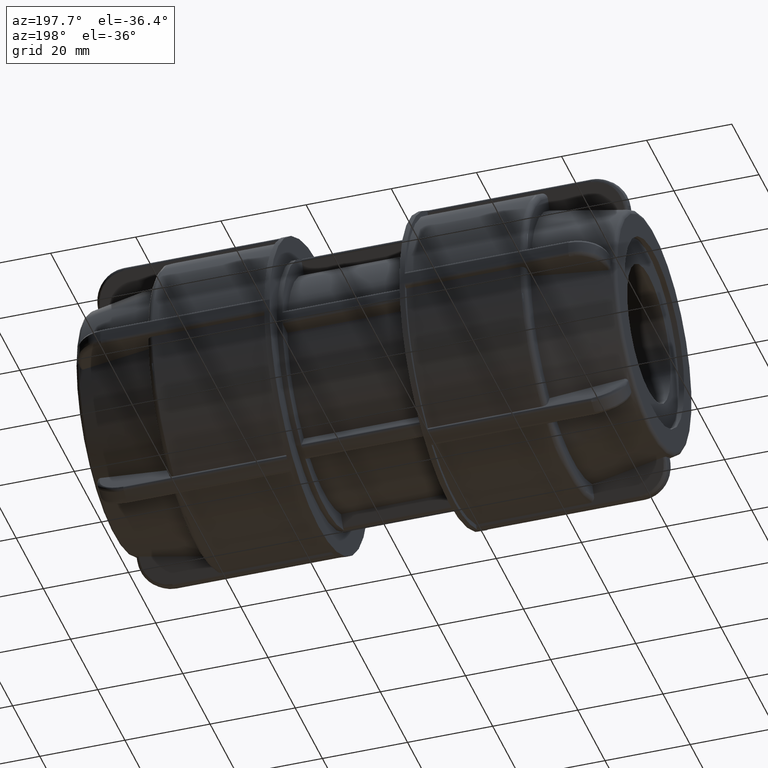
[diagram: clean part render]
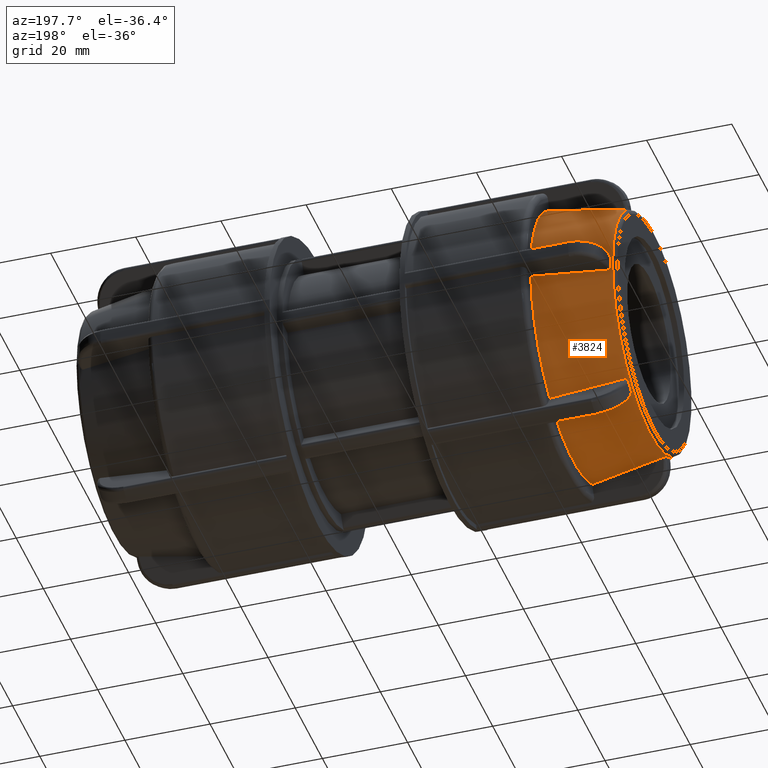
[diagram: same view with one face highlighted and labeled with its STEP entity id]
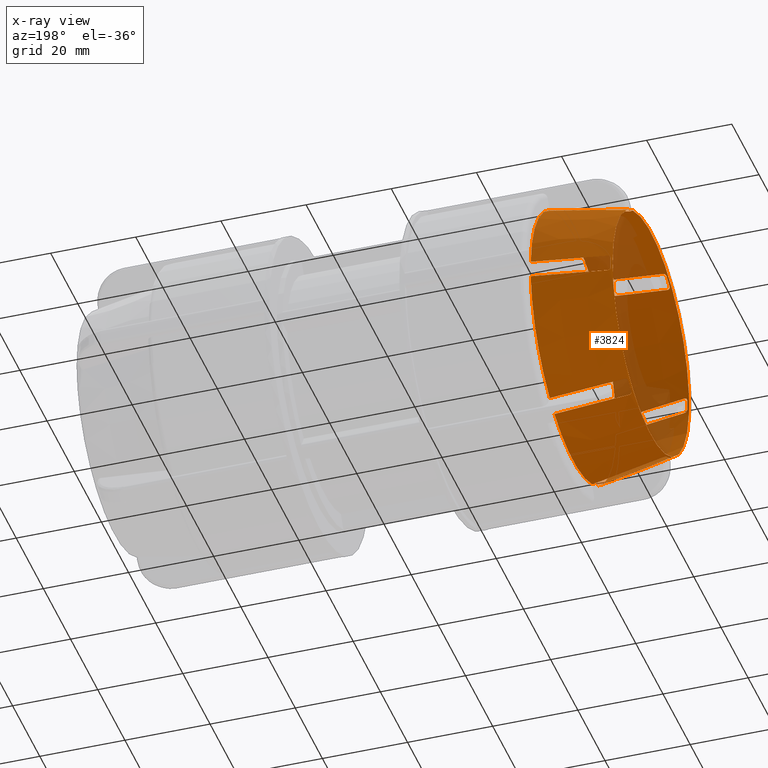
[diagram: x-ray of the same camera — body ghosted, the highlighted face saturated]
A machine part, auxiliary view. The second image highlights one B-rep face of the part: STEP entity #3824.
The next image is the same camera in x-ray: the body ghosted, the highlighted face saturated — about 14% of this face is hidden behind the body in this view.
In plain terms, the highlighted conical surface has half-angle 10 deg.
Its self-contained STEP definition (entity closure, byte-faithful):
#15=CONICAL_SURFACE('',#4187,29.6795144912481,9.99999999999999);
#43=(
BOUNDED_CURVE()
B_SPLINE_CURVE(2,(#5802,#5803,#5804),.UNSPECIFIED.,.F.,.F.)
B_SPLINE_CURVE_WITH_KNOTS((3,3),(0.077985239903861,1.80555209068343),
 .UNSPECIFIED.)
CURVE()
GEOMETRIC_REPRESENTATION_ITEM()
RATIONAL_B_SPLINE_CURVE((1.00011517546664,1.00133329912717,1.))
REPRESENTATION_ITEM('')
);
#44=(
BOUNDED_CURVE()
B_SPLINE_CURVE(2,(#6011,#6012,#6013),.UNSPECIFIED.,.F.,.F.)
B_SPLINE_CURVE_WITH_KNOTS((3,3),(0.0779852374107117,1.80555209068343),
 .UNSPECIFIED.)
CURVE()
GEOMETRIC_REPRESENTATION_ITEM()
RATIONAL_B_SPLINE_CURVE((1.00011517515057,1.0013332955109,1.))
REPRESENTATION_ITEM('')
);
#45=(
BOUNDED_CURVE()
B_SPLINE_CURVE(2,(#6172,#6173,#6174),.UNSPECIFIED.,.F.,.F.)
B_SPLINE_CURVE_WITH_KNOTS((3,3),(0.0779852374741689,1.80555209068343),
 .UNSPECIFIED.)
CURVE()
GEOMETRIC_REPRESENTATION_ITEM()
RATIONAL_B_SPLINE_CURVE((1.00011517516023,1.00133329562156,1.))
REPRESENTATION_ITEM('')
);
#46=(
BOUNDED_CURVE()
B_SPLINE_CURVE(2,(#6333,#6334,#6335),.UNSPECIFIED.,.F.,.F.)
B_SPLINE_CURVE_WITH_KNOTS((3,3),(0.0779852374197548,1.80555209068343),
 .UNSPECIFIED.)
CURVE()
GEOMETRIC_REPRESENTATION_ITEM()
RATIONAL_B_SPLINE_CURVE((1.00011517515211,1.00133329552855,1.))
REPRESENTATION_ITEM('')
);
#47=(
BOUNDED_CURVE()
B_SPLINE_CURVE(2,(#6494,#6495,#6496),.UNSPECIFIED.,.F.,.F.)
B_SPLINE_CURVE_WITH_KNOTS((3,3),(0.0779852400114953,1.80555209068343),
 .UNSPECIFIED.)
CURVE()
GEOMETRIC_REPRESENTATION_ITEM()
RATIONAL_B_SPLINE_CURVE((1.00011517547462,1.00133329921766,1.))
REPRESENTATION_ITEM('')
);
#48=(
BOUNDED_CURVE()
B_SPLINE_CURVE(2,(#6571,#6572,#6573),.UNSPECIFIED.,.F.,.F.)
B_SPLINE_CURVE_WITH_KNOTS((3,3),(0.,1.72756685067412),.UNSPECIFIED.)
CURVE()
GEOMETRIC_REPRESENTATION_ITEM()
RATIONAL_B_SPLINE_CURVE((1.,1.00133329924785,1.00011517547722))
REPRESENTATION_ITEM('')
);
#49=(
BOUNDED_CURVE()
B_SPLINE_CURVE(2,(#6592,#6593,#6594),.UNSPECIFIED.,.F.,.F.)
B_SPLINE_CURVE_WITH_KNOTS((3,3),(0.,1.72756685298491),.UNSPECIFIED.)
CURVE()
GEOMETRIC_REPRESENTATION_ITEM()
RATIONAL_B_SPLINE_CURVE((1.,1.00133329596623,1.00011517519033))
REPRESENTATION_ITEM('')
);
#50=(
BOUNDED_CURVE()
B_SPLINE_CURVE(2,(#6613,#6614,#6615),.UNSPECIFIED.,.F.,.F.)
B_SPLINE_CURVE_WITH_KNOTS((3,3),(0.,1.72756685338818),.UNSPECIFIED.)
CURVE()
GEOMETRIC_REPRESENTATION_ITEM()
RATIONAL_B_SPLINE_CURVE((1.,1.00133329537451,1.00011517513862))
REPRESENTATION_ITEM('')
);
#51=(
BOUNDED_CURVE()
B_SPLINE_CURVE(2,(#6634,#6635,#6636),.UNSPECIFIED.,.F.,.F.)
B_SPLINE_CURVE_WITH_KNOTS((3,3),(0.,1.7275668533138),.UNSPECIFIED.)
CURVE()
GEOMETRIC_REPRESENTATION_ITEM()
RATIONAL_B_SPLINE_CURVE((1.,1.00133329551342,1.00011517515073))
REPRESENTATION_ITEM('')
);
#52=(
BOUNDED_CURVE()
B_SPLINE_CURVE(2,(#6655,#6656,#6657),.UNSPECIFIED.,.F.,.F.)
B_SPLINE_CURVE_WITH_KNOTS((3,3),(0.,1.72756685338782),.UNSPECIFIED.)
CURVE()
GEOMETRIC_REPRESENTATION_ITEM()
RATIONAL_B_SPLINE_CURVE((1.,1.00133329536203,1.00011517513754))
REPRESENTATION_ITEM('')
);
#53=(
BOUNDED_CURVE()
B_SPLINE_CURVE(2,(#6832,#6833,#6834),.UNSPECIFIED.,.F.,.F.)
B_SPLINE_CURVE_WITH_KNOTS((3,3),(0.0779852374755114,1.80555209068343),
 .UNSPECIFIED.)
CURVE()
GEOMETRIC_REPRESENTATION_ITEM()
RATIONAL_B_SPLINE_CURVE((1.00011517515731,1.00133329558777,1.))
REPRESENTATION_ITEM('')
);
#54=(
BOUNDED_CURVE()
B_SPLINE_CURVE(2,(#6906,#6907,#6908),.UNSPECIFIED.,.F.,.F.)
B_SPLINE_CURVE_WITH_KNOTS((3,3),(0.,1.72756685320891),.UNSPECIFIED.)
CURVE()
GEOMETRIC_REPRESENTATION_ITEM()
RATIONAL_B_SPLINE_CURVE((1.,1.00133329559259,1.00011517515772))
REPRESENTATION_ITEM('')
);
#69=B_SPLINE_CURVE_WITH_KNOTS('',3,(#5770,#5771,#5772,#5773,#5774,#5775,
#5776,#5777,#5778,#5779,#5780,#5781),.UNSPECIFIED.,.F.,.F.,(4,2,2,2,2,4),
(0.111268456370665,0.138060680821861,0.165429263545103,0.193175798658956,
0.220922333772809,0.221842292439275),.UNSPECIFIED.);
#73=B_SPLINE_CURVE_WITH_KNOTS('',3,(#5862,#5863,#5864,#5865,#5866,#5867,
#5868,#5869,#5870,#5871,#5872,#5873),.UNSPECIFIED.,.F.,.F.,(4,2,2,2,2,4),
(0.221775675782931,0.222695634449382,0.250442169563234,0.278188704677087,
0.305557287400329,0.332349511851525),.UNSPECIFIED.);
#76=B_SPLINE_CURVE_WITH_KNOTS('',3,(#5979,#5980,#5981,#5982,#5983,#5984,
#5985,#5986,#5987,#5988,#5989,#5990),.UNSPECIFIED.,.F.,.F.,(4,2,2,2,2,4),
(0.111268456370665,0.138060680821861,0.165429263545103,0.193175798658956,
0.220922333772809,0.221842292439257),.UNSPECIFIED.);
#80=B_SPLINE_CURVE_WITH_KNOTS('',3,(#6068,#6069,#6070,#6071,#6072,#6073,
#6074,#6075,#6076,#6077,#6078,#6079),.UNSPECIFIED.,.F.,.F.,(4,2,2,2,2,4),
(0.221775675782934,0.222695634449381,0.250442169563234,0.278188704677086,
0.305557287400328,0.332349511851525),.UNSPECIFIED.);
#83=B_SPLINE_CURVE_WITH_KNOTS('',3,(#6140,#6141,#6142,#6143,#6144,#6145,
#6146,#6147,#6148,#6149,#6150,#6151),.UNSPECIFIED.,.F.,.F.,(4,2,2,2,2,4),
(0.111268456370665,0.138060680821861,0.165429263545103,0.193175798658956,
0.220922333772808,0.221842292439258),.UNSPECIFIED.);
#87=B_SPLINE_CURVE_WITH_KNOTS('',3,(#6229,#6230,#6231,#6232,#6233,#6234,
#6235,#6236,#6237,#6238,#6239,#6240),.UNSPECIFIED.,.F.,.F.,(4,2,2,2,2,4),
(0.221775675782932,0.222695634449381,0.250442169563234,0.278188704677086,
0.305557287400328,0.332349511851525),.UNSPECIFIED.);
#90=B_SPLINE_CURVE_WITH_KNOTS('',3,(#6301,#6302,#6303,#6304,#6305,#6306,
#6307,#6308,#6309,#6310,#6311,#6312),.UNSPECIFIED.,.F.,.F.,(4,2,2,2,2,4),
(0.111268456370664,0.138060680821861,0.165429263545102,0.193175798658956,
0.220922333772809,0.221842292439257),.UNSPECIFIED.);
#94=B_SPLINE_CURVE_WITH_KNOTS('',3,(#6390,#6391,#6392,#6393,#6394,#6395,
#6396,#6397,#6398,#6399,#6400,#6401),.UNSPECIFIED.,.F.,.F.,(4,2,2,2,2,4),
(0.221775675782933,0.222695634449381,0.250442169563234,0.278188704677087,
0.305557287400329,0.332349511851525),.UNSPECIFIED.);
#97=B_SPLINE_CURVE_WITH_KNOTS('',3,(#6462,#6463,#6464,#6465,#6466,#6467,
#6468,#6469,#6470,#6471,#6472,#6473),.UNSPECIFIED.,.F.,.F.,(4,2,2,2,2,4),
(0.111268456370665,0.138060680821861,0.165429263545103,0.193175798658956,
0.220922333772808,0.221842292439274),.UNSPECIFIED.);
#101=B_SPLINE_CURVE_WITH_KNOTS('',3,(#6551,#6552,#6553,#6554,#6555,#6556,
#6557,#6558,#6559,#6560,#6561,#6562),.UNSPECIFIED.,.F.,.F.,(4,2,2,2,2,4),
(0.221775675782915,0.222695634449381,0.250442169563234,0.278188704677087,
0.305557287400328,0.332349511851525),.UNSPECIFIED.);
#111=B_SPLINE_CURVE_WITH_KNOTS('',3,(#6817,#6818,#6819,#6820,#6821,#6822,
#6823,#6824,#6825,#6826,#6827,#6828),.UNSPECIFIED.,.F.,.F.,(4,2,2,2,2,4),
(0.111268456370665,0.138060680821862,0.165429263545104,0.193175798658957,
0.220922333772809,0.221842292439257),.UNSPECIFIED.);
#114=B_SPLINE_CURVE_WITH_KNOTS('',3,(#6887,#6888,#6889,#6890,#6891,#6892,
#6893,#6894,#6895,#6896,#6897,#6898),.UNSPECIFIED.,.F.,.F.,(4,2,2,2,2,4),
(0.221775675782933,0.222695634449381,0.250442169563234,0.278188704677086,
0.305557287400328,0.332349511851525),.UNSPECIFIED.);
#203=FACE_BOUND('',#685,.T.);
#438=FACE_OUTER_BOUND('',#684,.T.);
#684=EDGE_LOOP('',(#3080,#3081,#3082,#3083,#3084,#3085,#3086,#3087,#3088,
#3089,#3090,#3091,#3092,#3093,#3094,#3095,#3096,#3097,#3098,#3099,#3100,
#3101,#3102,#3103,#3104,#3105,#3106,#3107,#3108,#3109,#3110,#3111,#3112,
#3113,#3114,#3115));
#685=EDGE_LOOP('',(#3116));
#1308=CIRCLE('',#4034,28.2239352654997);
#1329=CIRCLE('',#4063,28.2239352654997);
#1337=CIRCLE('',#4078,28.2239352654997);
#1345=CIRCLE('',#4093,28.2239352654997);
#1353=CIRCLE('',#4108,28.2239352654997);
#1356=CIRCLE('',#4118,31.3590289824963);
#1358=CIRCLE('',#4121,31.3590289824963);
#1360=CIRCLE('',#4124,31.3590289824963);
#1362=CIRCLE('',#4127,31.3590289824963);
#1363=CIRCLE('',#4129,31.3590289824963);
#1366=CIRCLE('',#4133,31.3590289824963);
#1386=CIRCLE('',#4180,28.2239352654997);
#1389=CIRCLE('',#4186,28.1457081218349);
#1567=VERTEX_POINT('',#5768);
#1568=VERTEX_POINT('',#5769);
#1572=VERTEX_POINT('',#5800);
#1579=VERTEX_POINT('',#5860);
#1580=VERTEX_POINT('',#5861);
#1606=VERTEX_POINT('',#5977);
#1607=VERTEX_POINT('',#5978);
#1611=VERTEX_POINT('',#6009);
#1616=VERTEX_POINT('',#6066);
#1617=VERTEX_POINT('',#6067);
#1622=VERTEX_POINT('',#6138);
#1623=VERTEX_POINT('',#6139);
#1627=VERTEX_POINT('',#6170);
#1632=VERTEX_POINT('',#6227);
#1633=VERTEX_POINT('',#6228);
#1638=VERTEX_POINT('',#6299);
#1639=VERTEX_POINT('',#6300);
#1643=VERTEX_POINT('',#6331);
#1648=VERTEX_POINT('',#6388);
#1649=VERTEX_POINT('',#6389);
#1654=VERTEX_POINT('',#6460);
#1655=VERTEX_POINT('',#6461);
#1659=VERTEX_POINT('',#6492);
#1664=VERTEX_POINT('',#6549);
#1665=VERTEX_POINT('',#6550);
#1666=VERTEX_POINT('',#6570);
#1670=VERTEX_POINT('',#6591);
#1674=VERTEX_POINT('',#6612);
#1678=VERTEX_POINT('',#6633);
#1682=VERTEX_POINT('',#6654);
#1687=VERTEX_POINT('',#6677);
#1688=VERTEX_POINT('',#6690);
#1700=VERTEX_POINT('',#6815);
#1701=VERTEX_POINT('',#6816);
#1705=VERTEX_POINT('',#6885);
#1706=VERTEX_POINT('',#6886);
#1708=VERTEX_POINT('',#6912);
#1981=EDGE_CURVE('',#1567,#1568,#69,.F.);
#1988=EDGE_CURVE('',#1567,#1572,#43,.T.);
#1996=EDGE_CURVE('',#1579,#1580,#73,.F.);
#1999=EDGE_CURVE('',#1579,#1568,#1308,.T.);
#2030=EDGE_CURVE('',#1606,#1607,#76,.F.);
#2037=EDGE_CURVE('',#1606,#1611,#44,.T.);
#2044=EDGE_CURVE('',#1616,#1617,#80,.F.);
#2047=EDGE_CURVE('',#1616,#1607,#1329,.T.);
#2055=EDGE_CURVE('',#1622,#1623,#83,.F.);
#2062=EDGE_CURVE('',#1622,#1627,#45,.T.);
#2069=EDGE_CURVE('',#1632,#1633,#87,.F.);
#2072=EDGE_CURVE('',#1632,#1623,#1337,.T.);
#2080=EDGE_CURVE('',#1638,#1639,#90,.F.);
#2087=EDGE_CURVE('',#1638,#1643,#46,.T.);
#2094=EDGE_CURVE('',#1648,#1649,#94,.F.);
#2097=EDGE_CURVE('',#1648,#1639,#1345,.T.);
#2105=EDGE_CURVE('',#1654,#1655,#97,.F.);
#2112=EDGE_CURVE('',#1654,#1659,#47,.T.);
#2119=EDGE_CURVE('',#1664,#1665,#101,.F.);
#2122=EDGE_CURVE('',#1664,#1655,#1353,.T.);
#2124=EDGE_CURVE('',#1666,#1665,#48,.T.);
#2129=EDGE_CURVE('',#1670,#1580,#49,.T.);
#2134=EDGE_CURVE('',#1674,#1617,#50,.T.);
#2139=EDGE_CURVE('',#1678,#1633,#51,.T.);
#2144=EDGE_CURVE('',#1682,#1649,#52,.T.);
#2151=EDGE_CURVE('',#1687,#1659,#1356,.T.);
#2153=EDGE_CURVE('',#1666,#1643,#1358,.T.);
#2155=EDGE_CURVE('',#1682,#1627,#1360,.T.);
#2157=EDGE_CURVE('',#1678,#1611,#1362,.T.);
#2158=EDGE_CURVE('',#1670,#1688,#1363,.T.);
#2162=EDGE_CURVE('',#1674,#1572,#1366,.T.);
#2189=EDGE_CURVE('',#1700,#1701,#111,.F.);
#2192=EDGE_CURVE('',#1700,#1688,#53,.T.);
#2198=EDGE_CURVE('',#1705,#1706,#114,.F.);
#2201=EDGE_CURVE('',#1705,#1701,#1386,.T.);
#2203=EDGE_CURVE('',#1687,#1706,#54,.T.);
#2205=EDGE_CURVE('',#1708,#1708,#1389,.T.);
#3080=ORIENTED_EDGE('',*,*,#1988,.T.);
#3081=ORIENTED_EDGE('',*,*,#2162,.F.);
#3082=ORIENTED_EDGE('',*,*,#2134,.T.);
#3083=ORIENTED_EDGE('',*,*,#2044,.F.);
#3084=ORIENTED_EDGE('',*,*,#2047,.T.);
#3085=ORIENTED_EDGE('',*,*,#2030,.F.);
#3086=ORIENTED_EDGE('',*,*,#2037,.T.);
#3087=ORIENTED_EDGE('',*,*,#2157,.F.);
#3088=ORIENTED_EDGE('',*,*,#2139,.T.);
#3089=ORIENTED_EDGE('',*,*,#2069,.F.);
#3090=ORIENTED_EDGE('',*,*,#2072,.T.);
#3091=ORIENTED_EDGE('',*,*,#2055,.F.);
#3092=ORIENTED_EDGE('',*,*,#2062,.T.);
#3093=ORIENTED_EDGE('',*,*,#2155,.F.);
#3094=ORIENTED_EDGE('',*,*,#2144,.T.);
#3095=ORIENTED_EDGE('',*,*,#2094,.F.);
#3096=ORIENTED_EDGE('',*,*,#2097,.T.);
#3097=ORIENTED_EDGE('',*,*,#2080,.F.);
#3098=ORIENTED_EDGE('',*,*,#2087,.T.);
#3099=ORIENTED_EDGE('',*,*,#2153,.F.);
#3100=ORIENTED_EDGE('',*,*,#2124,.T.);
#3101=ORIENTED_EDGE('',*,*,#2119,.F.);
#3102=ORIENTED_EDGE('',*,*,#2122,.T.);
#3103=ORIENTED_EDGE('',*,*,#2105,.F.);
#3104=ORIENTED_EDGE('',*,*,#2112,.T.);
#3105=ORIENTED_EDGE('',*,*,#2151,.F.);
#3106=ORIENTED_EDGE('',*,*,#2203,.T.);
#3107=ORIENTED_EDGE('',*,*,#2198,.F.);
#3108=ORIENTED_EDGE('',*,*,#2201,.T.);
#3109=ORIENTED_EDGE('',*,*,#2189,.F.);
#3110=ORIENTED_EDGE('',*,*,#2192,.T.);
#3111=ORIENTED_EDGE('',*,*,#2158,.F.);
#3112=ORIENTED_EDGE('',*,*,#2129,.T.);
#3113=ORIENTED_EDGE('',*,*,#1996,.F.);
#3114=ORIENTED_EDGE('',*,*,#1999,.T.);
#3115=ORIENTED_EDGE('',*,*,#1981,.F.);
#3116=ORIENTED_EDGE('',*,*,#2205,.F.);
#3824=ADVANCED_FACE('',(#438,#203),#15,.T.);
#4034=AXIS2_PLACEMENT_3D('',#5877,#4658,#4659);
#4063=AXIS2_PLACEMENT_3D('',#6083,#4735,#4736);
#4078=AXIS2_PLACEMENT_3D('',#6244,#4774,#4775);
#4093=AXIS2_PLACEMENT_3D('',#6405,#4813,#4814);
#4108=AXIS2_PLACEMENT_3D('',#6566,#4852,#4853);
#4118=AXIS2_PLACEMENT_3D('',#6679,#4888,#4889);
#4121=AXIS2_PLACEMENT_3D('',#6682,#4894,#4895);
#4124=AXIS2_PLACEMENT_3D('',#6685,#4900,#4901);
#4127=AXIS2_PLACEMENT_3D('',#6688,#4906,#4907);
#4129=AXIS2_PLACEMENT_3D('',#6691,#4910,#4911);
#4133=AXIS2_PLACEMENT_3D('',#6697,#4919,#4920);
#4180=AXIS2_PLACEMENT_3D('',#6902,#5023,#5024);
#4186=AXIS2_PLACEMENT_3D('',#6913,#5035,#5036);
#4187=AXIS2_PLACEMENT_3D('',#6914,#5037,#5038);
#4658=DIRECTION('center_axis',(-1.,-2.84362568521734E-16,3.77572029120231E-17));
#4659=DIRECTION('ref_axis',(-2.62563437256631E-16,1.,0.));
#4735=DIRECTION('center_axis',(-1.,-2.40764305991527E-16,3.7757202912023E-17));
#4736=DIRECTION('ref_axis',(-2.62563437256631E-16,1.,0.));
#4774=DIRECTION('center_axis',(-1.,-2.18965174726423E-16,9.55261252416069E-32));
#4775=DIRECTION('ref_axis',(-2.62563437256631E-16,1.,0.));
#4813=DIRECTION('center_axis',(-1.,-2.40764305991527E-16,-3.77572029120231E-17));
#4814=DIRECTION('ref_axis',(-2.62563437256631E-16,1.,0.));
#4852=DIRECTION('center_axis',(-1.,-2.84362568521735E-16,-3.7757202912023E-17));
#4853=DIRECTION('ref_axis',(-2.62563437256631E-16,1.,0.));
#4888=DIRECTION('center_axis',(1.,3.06161699786838E-16,0.));
#4889=DIRECTION('ref_axis',(0.,0.,-1.));
#4894=DIRECTION('center_axis',(1.,3.06161699786838E-16,0.));
#4895=DIRECTION('ref_axis',(0.,0.,-1.));
#4900=DIRECTION('center_axis',(1.,3.06161699786838E-16,0.));
#4901=DIRECTION('ref_axis',(0.,0.,-1.));
#4906=DIRECTION('center_axis',(1.,3.06161699786838E-16,0.));
#4907=DIRECTION('ref_axis',(0.,0.,-1.));
#4910=DIRECTION('center_axis',(1.,3.06161699786838E-16,0.));
#4911=DIRECTION('ref_axis',(0.,0.,-1.));
#4919=DIRECTION('center_axis',(1.,3.06161699786838E-16,0.));
#4920=DIRECTION('ref_axis',(0.,0.,-1.));
#5023=DIRECTION('center_axis',(-1.,-3.06161699786838E-16,0.));
#5024=DIRECTION('ref_axis',(-2.62563437256631E-16,1.,0.));
#5035=DIRECTION('center_axis',(-1.,-3.1556442490466E-16,4.18248991493488E-32));
#5036=DIRECTION('ref_axis',(3.1556442490466E-16,-1.,3.06161699786838E-17));
#5037=DIRECTION('center_axis',(1.,3.06161699786838E-16,0.));
#5038=DIRECTION('ref_axis',(-2.62563437256631E-16,1.,0.));
#5768=CARTESIAN_POINT('',(-61.5,12.4089621216375,-25.4929528638739));
#5769=CARTESIAN_POINT('',(-62.23,12.9978214980587,-25.0528872223487));
#5770=CARTESIAN_POINT('Ctrl Pts',(-62.23,12.9978214980587,-25.0528872223487));
#5771=CARTESIAN_POINT('Ctrl Pts',(-62.23,12.9183291331213,-25.0941290784567));
#5772=CARTESIAN_POINT('Ctrl Pts',(-62.2125814320495,12.8350137947977,-25.1402867686124));
#5773=CARTESIAN_POINT('Ctrl Pts',(-62.1410214677871,12.6825326506249,-25.2316822937641));
#5774=CARTESIAN_POINT('Ctrl Pts',(-62.0860556550192,12.6137249771908,-25.2769062733003));
#5775=CARTESIAN_POINT('Ctrl Pts',(-61.9581585414505,12.5073444481066,-25.3548643986504));
#5776=CARTESIAN_POINT('Ctrl Pts',(-61.8764468730045,12.4630801203129,-25.3926454924451));
#5777=CARTESIAN_POINT('Ctrl Pts',(-61.6974442873262,12.4099991193196,-25.4537487990236));
#5778=CARTESIAN_POINT('Ctrl Pts',(-61.6001627310419,12.4011814812673,-25.4770975933435));
#5779=CARTESIAN_POINT('Ctrl Pts',(-61.5060594466201,12.4084436027999,-25.4920169604459));
#5780=CARTESIAN_POINT('Ctrl Pts',(-61.5030328191243,12.408694069985,-25.4924885847927));
#5781=CARTESIAN_POINT('Ctrl Pts',(-61.4999999999998,12.4089621216368,-25.4929528638727));
#5800=CARTESIAN_POINT('',(-44.45,13.9155424476656,-28.1024265342382));
#5802=CARTESIAN_POINT('Ctrl Pts',(-61.5000000000003,12.4089621216375,-25.4929528638739));
#5803=CARTESIAN_POINT('Ctrl Pts',(-53.4061584542017,13.1243254541861,-26.7319985017199));
#5804=CARTESIAN_POINT('Ctrl Pts',(-44.45,13.9155424476656,-28.1024265342382));
#5860=CARTESIAN_POINT('',(-62.23,15.1975260236711,-23.7828872223487));
#5861=CARTESIAN_POINT('',(-61.5,15.8730637367748,-23.4929528638731));
#5862=CARTESIAN_POINT('Ctrl Pts',(-61.4999999999999,15.8730637367745,-23.4929528638727));
#5863=CARTESIAN_POINT('Ctrl Pts',(-61.5030328191244,15.8727956851227,-23.4924885847927));
#5864=CARTESIAN_POINT('Ctrl Pts',(-61.5060594466202,15.8725124800499,-23.4920358616742));
#5865=CARTESIAN_POINT('Ctrl Pts',(-61.6001627310419,15.8632229898972,-23.4782869963904));
#5866=CARTESIAN_POINT('Ctrl Pts',(-61.6974442873262,15.8385935218422,-23.4742488977852));
#5867=CARTESIAN_POINT('Ctrl Pts',(-61.8764468730045,15.7591360055933,-23.4896667398144));
#5868=CARTESIAN_POINT('Ctrl Pts',(-61.9581585414505,15.7042844546875,-23.5091102252678));
#5869=CARTESIAN_POINT('Ctrl Pts',(-62.0860556550191,15.5835804731608,-23.5622594032477));
#5870=CARTESIAN_POINT('Ctrl Pts',(-62.1410214677871,15.5100115213052,-23.5992366066488));
#5871=CARTESIAN_POINT('Ctrl Pts',(-62.2125814320495,15.3546201026452,-23.6855913885248));
#5872=CARTESIAN_POINT('Ctrl Pts',(-62.23,15.2729887012286,-23.7346657429601));
#5873=CARTESIAN_POINT('Ctrl Pts',(-62.23,15.1975260236711,-23.7828872223487));
#5877=CARTESIAN_POINT('Origin',(-62.23,-1.9052442577735E-14,0.));
#5977=CARTESIAN_POINT('',(-61.5,-15.8730637367748,-23.492952863873));
#5978=CARTESIAN_POINT('',(-62.23,-15.1975260236712,-23.7828872223487));
#5979=CARTESIAN_POINT('Ctrl Pts',(-62.23,-15.1975260236712,-23.7828872223487));
#5980=CARTESIAN_POINT('Ctrl Pts',(-62.23,-15.2729887012287,-23.73466574296));
#5981=CARTESIAN_POINT('Ctrl Pts',(-62.2125814320495,-15.3546201026453,-23.6855913885248));
#5982=CARTESIAN_POINT('Ctrl Pts',(-62.1410214677871,-15.5100115213053,-23.5992366066488));
#5983=CARTESIAN_POINT('Ctrl Pts',(-62.0860556550191,-15.5835804731609,-23.5622594032477));
#5984=CARTESIAN_POINT('Ctrl Pts',(-61.9581585414505,-15.7042844546876,-23.5091102252678));
#5985=CARTESIAN_POINT('Ctrl Pts',(-61.8764468730045,-15.7591360055934,-23.4896667398144));
#5986=CARTESIAN_POINT('Ctrl Pts',(-61.6974442873262,-15.8385935218423,-23.4742488977852));
#5987=CARTESIAN_POINT('Ctrl Pts',(-61.6001627310419,-15.8632229898972,-23.4782869963904));
#5988=CARTESIAN_POINT('Ctrl Pts',(-61.5060594466202,-15.8725124800499,-23.4920358616742));
#5989=CARTESIAN_POINT('Ctrl Pts',(-61.5030328191244,-15.8727956851228,-23.4924885847927));
#5990=CARTESIAN_POINT('Ctrl Pts',(-61.5,-15.8730637367746,-23.4929528638727));
#6009=CARTESIAN_POINT('',(-44.45,-17.3796440628034,-26.1024265342382));
#6011=CARTESIAN_POINT('Ctrl Pts',(-61.5000000000003,-15.8730637367748,-23.492952863873));
#6012=CARTESIAN_POINT('Ctrl Pts',(-53.4061581674267,-16.5884270946649,-24.7319985456117));
#6013=CARTESIAN_POINT('Ctrl Pts',(-44.45,-17.3796440628034,-26.1024265342382));
#6066=CARTESIAN_POINT('',(-62.23,-12.9978214980587,-25.0528872223487));
#6067=CARTESIAN_POINT('',(-61.5,-12.408962121637,-25.492952863873));
#6068=CARTESIAN_POINT('Ctrl Pts',(-61.5,-12.4089621216369,-25.4929528638727));
#6069=CARTESIAN_POINT('Ctrl Pts',(-61.5030328191244,-12.408694069985,-25.4924885847927));
#6070=CARTESIAN_POINT('Ctrl Pts',(-61.5060594466202,-12.4084436028,-25.4920169604459));
#6071=CARTESIAN_POINT('Ctrl Pts',(-61.6001627310419,-12.4011814812674,-25.4770975933435));
#6072=CARTESIAN_POINT('Ctrl Pts',(-61.6974442873262,-12.4099991193197,-25.4537487990236));
#6073=CARTESIAN_POINT('Ctrl Pts',(-61.8764468730045,-12.463080120313,-25.3926454924451));
#6074=CARTESIAN_POINT('Ctrl Pts',(-61.9581585414505,-12.5073444481067,-25.3548643986504));
#6075=CARTESIAN_POINT('Ctrl Pts',(-62.0860556550191,-12.6137249771909,-25.2769062733003));
#6076=CARTESIAN_POINT('Ctrl Pts',(-62.1410214677871,-12.682532650625,-25.2316822937641));
#6077=CARTESIAN_POINT('Ctrl Pts',(-62.2125814320495,-12.8350137947978,-25.1402867686124));
#6078=CARTESIAN_POINT('Ctrl Pts',(-62.23,-12.9183291331214,-25.0941290784567));
#6079=CARTESIAN_POINT('Ctrl Pts',(-62.23,-12.9978214980587,-25.0528872223487));
#6083=CARTESIAN_POINT('Origin',(-62.23,-1.9052442577735E-14,0.));
#6138=CARTESIAN_POINT('',(-61.5,-28.2820258584119,2.00000000000001));
#6139=CARTESIAN_POINT('',(-62.23,-28.1953475217299,1.27000000000001));
#6140=CARTESIAN_POINT('Ctrl Pts',(-62.23,-28.1953475217299,1.27000000000001));
#6141=CARTESIAN_POINT('Ctrl Pts',(-62.23,-28.19131783435,1.35946333549669));
#6142=CARTESIAN_POINT('Ctrl Pts',(-62.2125814320495,-28.1896338974431,1.45469538008765));
#6143=CARTESIAN_POINT('Ctrl Pts',(-62.1410214677871,-28.1925441719302,1.63244568711526));
#6144=CARTESIAN_POINT('Ctrl Pts',(-62.0860556550191,-28.1973054503517,1.71464687005259));
#6145=CARTESIAN_POINT('Ctrl Pts',(-61.9581585414505,-28.2116289027943,1.8457541733826));
#6146=CARTESIAN_POINT('Ctrl Pts',(-61.8764468730045,-28.2222161259064,1.90297875263069));
#6147=CARTESIAN_POINT('Ctrl Pts',(-61.6974442873262,-28.248592641162,1.97949990123847));
#6148=CARTESIAN_POINT('Ctrl Pts',(-61.6001627310419,-28.2644044711646,1.99881059695313));
#6149=CARTESIAN_POINT('Ctrl Pts',(-61.5060594466202,-28.2809560828499,1.99998109877167));
#6150=CARTESIAN_POINT('Ctrl Pts',(-61.5030328191244,-28.2814897551078,2.00000000000001));
#6151=CARTESIAN_POINT('Ctrl Pts',(-61.5,-28.2820258584114,2.00000000000001));
#6170=CARTESIAN_POINT('',(-44.45,-31.295186510469,2.00000000000001));
#6172=CARTESIAN_POINT('Ctrl Pts',(-61.5000000000003,-28.2820258584118,2.00000000000001));
#6173=CARTESIAN_POINT('Ctrl Pts',(-53.4061581748763,-29.7127525728754,2.00000000000001));
#6174=CARTESIAN_POINT('Ctrl Pts',(-44.45,-31.295186510469,2.00000000000001));
#6227=CARTESIAN_POINT('',(-62.23,-28.1953475217299,-1.26999999999999));
#6228=CARTESIAN_POINT('',(-61.5,-28.2820258584118,-1.99999999999999));
#6229=CARTESIAN_POINT('Ctrl Pts',(-61.4999999999999,-28.2820258584114,-1.99999999999999));
#6230=CARTESIAN_POINT('Ctrl Pts',(-61.5030328191244,-28.2814897551078,-1.99999999999999));
#6231=CARTESIAN_POINT('Ctrl Pts',(-61.5060594466202,-28.2809560828499,-1.99998109877165));
#6232=CARTESIAN_POINT('Ctrl Pts',(-61.6001627310419,-28.2644044711646,-1.99881059695312));
#6233=CARTESIAN_POINT('Ctrl Pts',(-61.6974442873262,-28.248592641162,-1.97949990123846));
#6234=CARTESIAN_POINT('Ctrl Pts',(-61.8764468730045,-28.2222161259064,-1.90297875263068));
#6235=CARTESIAN_POINT('Ctrl Pts',(-61.9581585414505,-28.2116289027943,-1.84575417338259));
#6236=CARTESIAN_POINT('Ctrl Pts',(-62.0860556550191,-28.1973054503517,-1.71464687005257));
#6237=CARTESIAN_POINT('Ctrl Pts',(-62.1410214677871,-28.1925441719302,-1.63244568711524));
#6238=CARTESIAN_POINT('Ctrl Pts',(-62.2125814320495,-28.1896338974431,-1.45469538008762));
#6239=CARTESIAN_POINT('Ctrl Pts',(-62.23,-28.19131783435,-1.35946333549667));
#6240=CARTESIAN_POINT('Ctrl Pts',(-62.23,-28.1953475217299,-1.26999999999999));
#6244=CARTESIAN_POINT('Origin',(-62.23,-1.9052442577735E-14,0.));
#6299=CARTESIAN_POINT('',(-61.5,-12.408962121637,25.492952863873));
#6300=CARTESIAN_POINT('',(-62.23,-12.9978214980587,25.0528872223487));
#6301=CARTESIAN_POINT('Ctrl Pts',(-62.23,-12.9978214980587,25.0528872223487));
#6302=CARTESIAN_POINT('Ctrl Pts',(-62.23,-12.9183291331214,25.0941290784567));
#6303=CARTESIAN_POINT('Ctrl Pts',(-62.2125814320495,-12.8350137947978,25.1402867686124));
#6304=CARTESIAN_POINT('Ctrl Pts',(-62.1410214677871,-12.6825326506249,25.2316822937641));
#6305=CARTESIAN_POINT('Ctrl Pts',(-62.0860556550191,-12.6137249771909,25.2769062733003));
#6306=CARTESIAN_POINT('Ctrl Pts',(-61.9581585414505,-12.5073444481067,25.3548643986504));
#6307=CARTESIAN_POINT('Ctrl Pts',(-61.8764468730045,-12.463080120313,25.3926454924451));
#6308=CARTESIAN_POINT('Ctrl Pts',(-61.6974442873262,-12.4099991193197,25.4537487990236));
#6309=CARTESIAN_POINT('Ctrl Pts',(-61.6001627310419,-12.4011814812673,25.4770975933435));
#6310=CARTESIAN_POINT('Ctrl Pts',(-61.5060594466202,-12.4084436028,25.4920169604459));
#6311=CARTESIAN_POINT('Ctrl Pts',(-61.5030328191244,-12.408694069985,25.4924885847927));
#6312=CARTESIAN_POINT('Ctrl Pts',(-61.5,-12.4089621216368,25.4929528638727));
#6331=CARTESIAN_POINT('',(-44.45,-13.9155424476656,28.1024265342382));
#6333=CARTESIAN_POINT('Ctrl Pts',(-61.5000000000003,-12.408962121637,25.492952863873));
#6334=CARTESIAN_POINT('Ctrl Pts',(-53.4061581685036,-13.124325479432,26.7319985454469));
#6335=CARTESIAN_POINT('Ctrl Pts',(-44.45,-13.9155424476656,28.1024265342382));
#6388=CARTESIAN_POINT('',(-62.23,-15.1975260236712,23.7828872223487));
#6389=CARTESIAN_POINT('',(-61.5,-15.8730637367748,23.492952863873));
#6390=CARTESIAN_POINT('Ctrl Pts',(-61.5,-15.8730637367746,23.4929528638727));
#6391=CARTESIAN_POINT('Ctrl Pts',(-61.5030328191244,-15.8727956851228,23.4924885847927));
#6392=CARTESIAN_POINT('Ctrl Pts',(-61.5060594466202,-15.8725124800499,23.4920358616742));
#6393=CARTESIAN_POINT('Ctrl Pts',(-61.6001627310419,-15.8632229898972,23.4782869963904));
#6394=CARTESIAN_POINT('Ctrl Pts',(-61.6974442873262,-15.8385935218423,23.4742488977852));
#6395=CARTESIAN_POINT('Ctrl Pts',(-61.8764468730045,-15.7591360055934,23.4896667398144));
#6396=CARTESIAN_POINT('Ctrl Pts',(-61.9581585414505,-15.7042844546876,23.5091102252678));
#6397=CARTESIAN_POINT('Ctrl Pts',(-62.0860556550191,-15.5835804731609,23.5622594032477));
#6398=CARTESIAN_POINT('Ctrl Pts',(-62.1410214677871,-15.5100115213052,23.5992366066488));
#6399=CARTESIAN_POINT('Ctrl Pts',(-62.2125814320495,-15.3546201026453,23.6855913885248));
#6400=CARTESIAN_POINT('Ctrl Pts',(-62.23,-15.2729887012286,23.7346657429601));
#6401=CARTESIAN_POINT('Ctrl Pts',(-62.23,-15.1975260236712,23.7828872223487));
#6405=CARTESIAN_POINT('Origin',(-62.23,-1.9052442577735E-14,0.));
#6460=CARTESIAN_POINT('',(-61.5,15.8730637367753,23.4929528638739));
#6461=CARTESIAN_POINT('',(-62.23,15.1975260236712,23.7828872223487));
#6462=CARTESIAN_POINT('Ctrl Pts',(-62.23,15.1975260236712,23.7828872223487));
#6463=CARTESIAN_POINT('Ctrl Pts',(-62.23,15.2729887012286,23.73466574296));
#6464=CARTESIAN_POINT('Ctrl Pts',(-62.2125814320495,15.3546201026453,23.6855913885248));
#6465=CARTESIAN_POINT('Ctrl Pts',(-62.1410214677871,15.5100115213052,23.5992366066488));
#6466=CARTESIAN_POINT('Ctrl Pts',(-62.0860556550191,15.5835804731609,23.5622594032477));
#6467=CARTESIAN_POINT('Ctrl Pts',(-61.9581585414505,15.7042844546876,23.5091102252678));
#6468=CARTESIAN_POINT('Ctrl Pts',(-61.8764468730045,15.7591360055934,23.4896667398144));
#6469=CARTESIAN_POINT('Ctrl Pts',(-61.6974442873262,15.8385935218423,23.4742488977852));
#6470=CARTESIAN_POINT('Ctrl Pts',(-61.6001627310419,15.8632229898972,23.4782869963904));
#6471=CARTESIAN_POINT('Ctrl Pts',(-61.5060594466201,15.8725124800499,23.4920358616742));
#6472=CARTESIAN_POINT('Ctrl Pts',(-61.5030328191243,15.8727956851228,23.4924885847927));
#6473=CARTESIAN_POINT('Ctrl Pts',(-61.4999999999998,15.8730637367746,23.4929528638727));
#6492=CARTESIAN_POINT('',(-44.45,17.3796440628034,26.1024265342382));
#6494=CARTESIAN_POINT('Ctrl Pts',(-61.5000000000003,15.8730637367753,23.4929528638739));
#6495=CARTESIAN_POINT('Ctrl Pts',(-53.4061584660519,16.5884270682768,24.7319984999062));
#6496=CARTESIAN_POINT('Ctrl Pts',(-44.45,17.3796440628034,26.1024265342382));
#6549=CARTESIAN_POINT('',(-62.23,12.9978214980587,25.0528872223487));
#6550=CARTESIAN_POINT('',(-61.5,12.4089621216375,25.4929528638739));
#6551=CARTESIAN_POINT('Ctrl Pts',(-61.4999999999998,12.4089621216368,25.4929528638727));
#6552=CARTESIAN_POINT('Ctrl Pts',(-61.5030328191243,12.408694069985,25.4924885847927));
#6553=CARTESIAN_POINT('Ctrl Pts',(-61.5060594466201,12.4084436028,25.4920169604459));
#6554=CARTESIAN_POINT('Ctrl Pts',(-61.6001627310419,12.4011814812673,25.4770975933435));
#6555=CARTESIAN_POINT('Ctrl Pts',(-61.6974442873262,12.4099991193197,25.4537487990236));
#6556=CARTESIAN_POINT('Ctrl Pts',(-61.8764468730045,12.463080120313,25.3926454924451));
#6557=CARTESIAN_POINT('Ctrl Pts',(-61.9581585414505,12.5073444481066,25.3548643986504));
#6558=CARTESIAN_POINT('Ctrl Pts',(-62.0860556550191,12.6137249771908,25.2769062733003));
#6559=CARTESIAN_POINT('Ctrl Pts',(-62.1410214677871,12.6825326506249,25.2316822937641));
#6560=CARTESIAN_POINT('Ctrl Pts',(-62.2125814320495,12.8350137947978,25.1402867686124));
#6561=CARTESIAN_POINT('Ctrl Pts',(-62.23,12.9183291331213,25.0941290784567));
#6562=CARTESIAN_POINT('Ctrl Pts',(-62.23,12.9978214980587,25.0528872223487));
#6566=CARTESIAN_POINT('Origin',(-62.23,-1.9052442577735E-14,0.));
#6570=CARTESIAN_POINT('',(-44.45,13.9155424476656,28.1024265342382));
#6571=CARTESIAN_POINT('Ctrl Pts',(-44.45,13.9155424476656,28.1024265342382));
#6572=CARTESIAN_POINT('Ctrl Pts',(-53.4061584660706,13.1243254531373,26.7319984999033));
#6573=CARTESIAN_POINT('Ctrl Pts',(-61.5000000000003,12.4089621216375,25.4929528638739));
#6591=CARTESIAN_POINT('',(-44.45,17.3796440628033,-26.1024265342382));
#6592=CARTESIAN_POINT('Ctrl Pts',(-44.45,17.3796440628033,-26.1024265342382));
#6593=CARTESIAN_POINT('Ctrl Pts',(-53.4061582008382,16.5884270917124,-24.731998540498));
#6594=CARTESIAN_POINT('Ctrl Pts',(-61.5000000000003,15.8730637367748,-23.4929528638731));
#6612=CARTESIAN_POINT('',(-44.45,-13.9155424476657,-28.1024265342382));
#6613=CARTESIAN_POINT('Ctrl Pts',(-44.45,-13.9155424476657,-28.1024265342382));
#6614=CARTESIAN_POINT('Ctrl Pts',(-53.4061581543968,-13.1243254806786,-26.731998547606));
#6615=CARTESIAN_POINT('Ctrl Pts',(-61.5000000000003,-12.408962121637,-25.4929528638729));
#6633=CARTESIAN_POINT('',(-44.45,-31.295186510469,-1.99999999999999));
#6634=CARTESIAN_POINT('Ctrl Pts',(-44.45,-31.295186510469,-1.99999999999999));
#6635=CARTESIAN_POINT('Ctrl Pts',(-53.406158163203,-29.7127525749385,-1.99999999999999));
#6636=CARTESIAN_POINT('Ctrl Pts',(-61.5000000000003,-28.2820258584118,-1.99999999999999));
#6654=CARTESIAN_POINT('',(-44.45,-17.3796440628034,26.1024265342382));
#6655=CARTESIAN_POINT('Ctrl Pts',(-44.45,-17.3796440628034,26.1024265342382));
#6656=CARTESIAN_POINT('Ctrl Pts',(-53.4061581543331,-16.5884270958219,24.7319985476158));
#6657=CARTESIAN_POINT('Ctrl Pts',(-61.5000000000003,-15.8730637367748,23.492952863873));
#6677=CARTESIAN_POINT('',(-44.45,31.295186510469,2.));
#6679=CARTESIAN_POINT('Origin',(-44.45,-1.3608887555525E-14,0.));
#6682=CARTESIAN_POINT('Origin',(-44.45,-1.3608887555525E-14,0.));
#6685=CARTESIAN_POINT('Origin',(-44.45,-1.3608887555525E-14,0.));
#6688=CARTESIAN_POINT('Origin',(-44.45,-1.3608887555525E-14,0.));
#6690=CARTESIAN_POINT('',(-44.45,31.295186510469,-2.));
#6691=CARTESIAN_POINT('Origin',(-44.45,-1.3608887555525E-14,0.));
#6697=CARTESIAN_POINT('Origin',(-44.45,-1.3608887555525E-14,0.));
#6815=CARTESIAN_POINT('',(-61.5,28.2820258584118,-2.));
#6816=CARTESIAN_POINT('',(-62.23,28.1953475217299,-1.27));
#6817=CARTESIAN_POINT('Ctrl Pts',(-62.23,28.1953475217299,-1.27));
#6818=CARTESIAN_POINT('Ctrl Pts',(-62.23,28.19131783435,-1.35946333549668));
#6819=CARTESIAN_POINT('Ctrl Pts',(-62.2125814320495,28.189633897443,-1.45469538008763));
#6820=CARTESIAN_POINT('Ctrl Pts',(-62.1410214677871,28.1925441719301,-1.63244568711525));
#6821=CARTESIAN_POINT('Ctrl Pts',(-62.0860556550191,28.1973054503517,-1.71464687005258));
#6822=CARTESIAN_POINT('Ctrl Pts',(-61.9581585414505,28.2116289027942,-1.8457541733826));
#6823=CARTESIAN_POINT('Ctrl Pts',(-61.8764468730045,28.2222161259064,-1.90297875263069));
#6824=CARTESIAN_POINT('Ctrl Pts',(-61.6974442873262,28.2485926411619,-1.97949990123846));
#6825=CARTESIAN_POINT('Ctrl Pts',(-61.6001627310419,28.2644044711645,-1.99881059695313));
#6826=CARTESIAN_POINT('Ctrl Pts',(-61.5060594466202,28.2809560828499,-1.99998109877166));
#6827=CARTESIAN_POINT('Ctrl Pts',(-61.5030328191244,28.2814897551078,-2.));
#6828=CARTESIAN_POINT('Ctrl Pts',(-61.5,28.2820258584114,-2.));
#6832=CARTESIAN_POINT('Ctrl Pts',(-61.5000000000003,28.2820258584118,-2.));
#6833=CARTESIAN_POINT('Ctrl Pts',(-53.4061581747421,29.7127525728991,-2.));
#6834=CARTESIAN_POINT('Ctrl Pts',(-44.45,31.295186510469,-2.));
#6885=CARTESIAN_POINT('',(-62.23,28.1953475217299,1.27));
#6886=CARTESIAN_POINT('',(-61.5,28.2820258584118,2.));
#6887=CARTESIAN_POINT('Ctrl Pts',(-61.5,28.2820258584114,2.));
#6888=CARTESIAN_POINT('Ctrl Pts',(-61.5030328191244,28.2814897551078,2.));
#6889=CARTESIAN_POINT('Ctrl Pts',(-61.5060594466202,28.2809560828499,1.99998109877165));
#6890=CARTESIAN_POINT('Ctrl Pts',(-61.6001627310419,28.2644044711645,1.99881059695312));
#6891=CARTESIAN_POINT('Ctrl Pts',(-61.6974442873262,28.2485926411619,1.97949990123845));
#6892=CARTESIAN_POINT('Ctrl Pts',(-61.8764468730045,28.2222161259064,1.90297875263068));
#6893=CARTESIAN_POINT('Ctrl Pts',(-61.9581585414505,28.2116289027942,1.84575417338259));
#6894=CARTESIAN_POINT('Ctrl Pts',(-62.0860556550191,28.1973054503517,1.71464687005258));
#6895=CARTESIAN_POINT('Ctrl Pts',(-62.1410214677871,28.1925441719301,1.63244568711525));
#6896=CARTESIAN_POINT('Ctrl Pts',(-62.2125814320495,28.189633897443,1.45469538008763));
#6897=CARTESIAN_POINT('Ctrl Pts',(-62.23,28.19131783435,1.35946333549667));
#6898=CARTESIAN_POINT('Ctrl Pts',(-62.23,28.1953475217299,1.27));
#6902=CARTESIAN_POINT('Origin',(-62.23,-1.9052442577735E-14,0.));
#6906=CARTESIAN_POINT('Ctrl Pts',(-44.45,31.295186510469,2.));
#6907=CARTESIAN_POINT('Ctrl Pts',(-53.4061581746781,29.7127525729104,2.));
#6908=CARTESIAN_POINT('Ctrl Pts',(-61.5000000000003,28.2820258584118,2.));
#6912=CARTESIAN_POINT('',(-62.6736481776669,28.1457081218349,-8.6171378402852E-15));
#6913=CARTESIAN_POINT('Origin',(-62.6736481776669,-1.99840144432528E-14,
-4.3085689201426E-15));
#6914=CARTESIAN_POINT('Origin',(-53.975,-1.65250777459946E-14,0.));